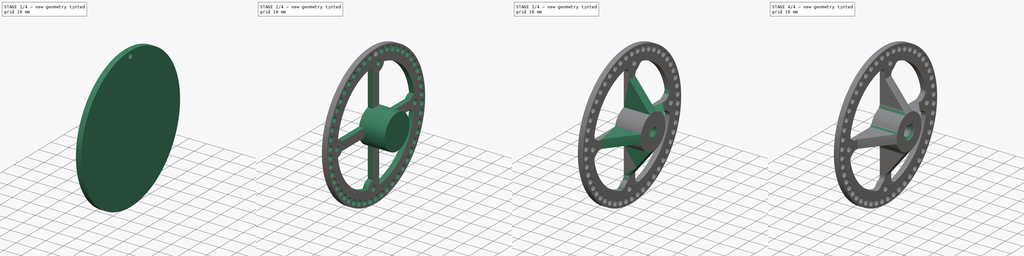
[diagram: build sequence overview — one tinted view per stage of 4, left to right]
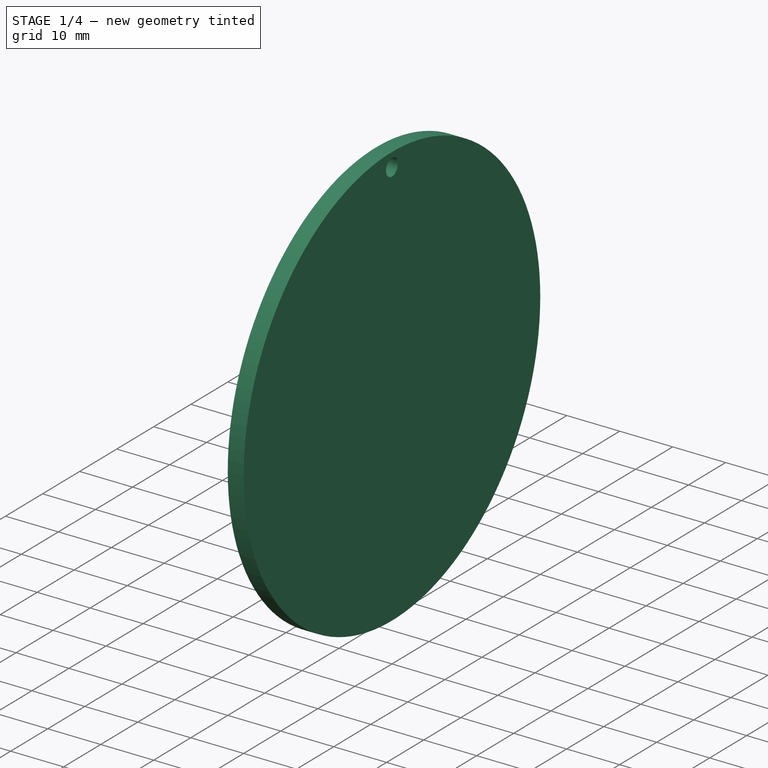
[diagram: stage 1 of 4 — iso view after this stage's code; geometry added in this stage tinted green]
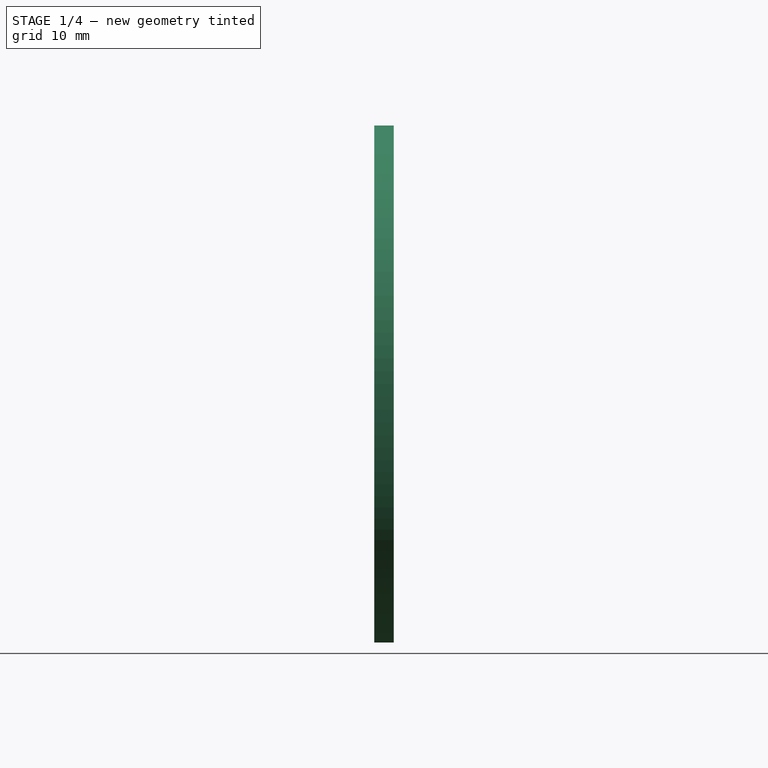
[diagram: stage 1 of 4 — front view after this stage's code; geometry added in this stage tinted green]
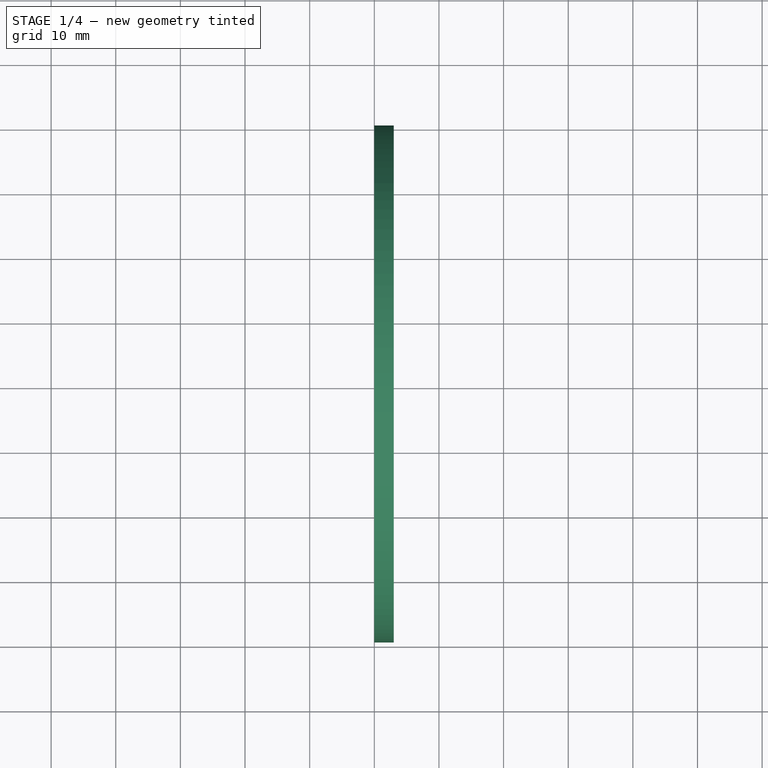
[diagram: stage 1 of 4 — top view after this stage's code; geometry added in this stage tinted green]
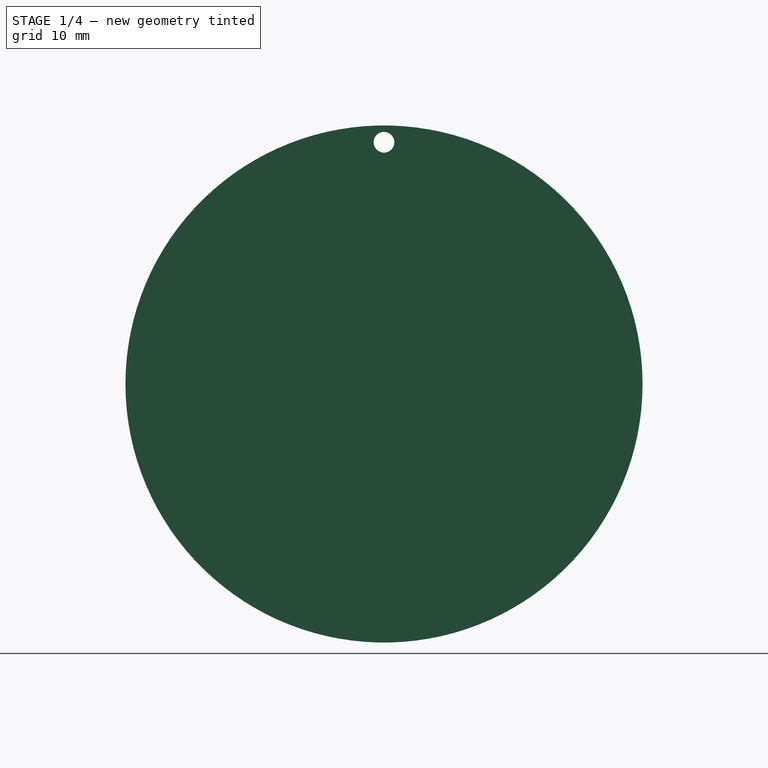
[diagram: stage 1 of 4 — right view after this stage's code; geometry added in this stage tinted green]
FCSTD DOCUMENT  (FreeCAD 1.0R39109 (Git))
Label: barrelMount
License: All rights reserved
LicenseURL: https://en.wikipedia.org/wiki/All_rights_reserved
objects: Sketcher::SketchObject×5, PartDesign::Pocket×3, PartDesign::Pad×2, PartDesign::Fillet×2, PartDesign::Chamfer×2, PartDesign::PolarPattern×1, PartDesign::Body×1
note: 40 computed .brp shape members not serialized (recipe doc carries the construction recipe); baked Part::Feature solids carry a one-line shape summary decoded from their .brp

FEATURE [Sketcher::SketchObject] Sketch
  ArcFitTolerance = 1e-06
  AttachmentSupport = -> [YZ_Plane]
  FullyConstrained = false
  MakeInternals = false
  MapMode = 5
  Placement = pos=(0,0,0) rot=(0.57735,0.57735,0.57735;2.0944rad)
  sketch-geometry (2):
    g0: Circle CenterX=0 CenterY=0 CenterZ=0 NormalX=0 NormalY=0 NormalZ=1 AngleXU=0 Radius=40
    g1: GeomPoint [constr] X=0 Y=0 Z=0
  constraints (1):
    c: Diameter(g0) = 80
FEATURE [PartDesign::Pad] Pad
  Direction = (1,0,0)
  Length = 3
  Length2 = 10
  Placement = pos=(0,0,0) rot=(1,1,1;2.0944rad)
  Profile = -> Sketch
  ReferenceAxis = -> Sketch [N_Axis]
  Refine = true
  Suppressed = false
  Type = 0
FEATURE [Sketcher::SketchObject] Sketch001
  ArcFitTolerance = 1e-06
  AttachmentSupport = -> [Pad]
  ExternalGeometry = -> [Pad]
  FullyConstrained = true
  MakeInternals = false
  MapMode = 5
  Placement = pos=(3,0,0) rot=(0.57735,0.57735,0.57735;2.0944rad)
  sketch-geometry (1):
    g0: Circle CenterX=0 CenterY=37.4 CenterZ=0 NormalX=0 NormalY=0 NormalZ=1 AngleXU=0 Radius=1.6
  constraints (3):
    c: PointOnObject(g0,g-2)
    c: Diameter(g0) = 3.2
    c: Distance(g0,g-3) = 1
FEATURE [PartDesign::Pocket] Pocket
  BaseFeature = -> Pad
  Direction = (-1,0,0)
  Length = 5
  Length2 = 5
  Placement = pos=(0,0,0) rot=(1,1,1;2.0944rad)
  Profile = -> Sketch001
  ReferenceAxis = -> Sketch001 [N_Axis]
  Refine = true
  Suppressed = false
  Type = 1
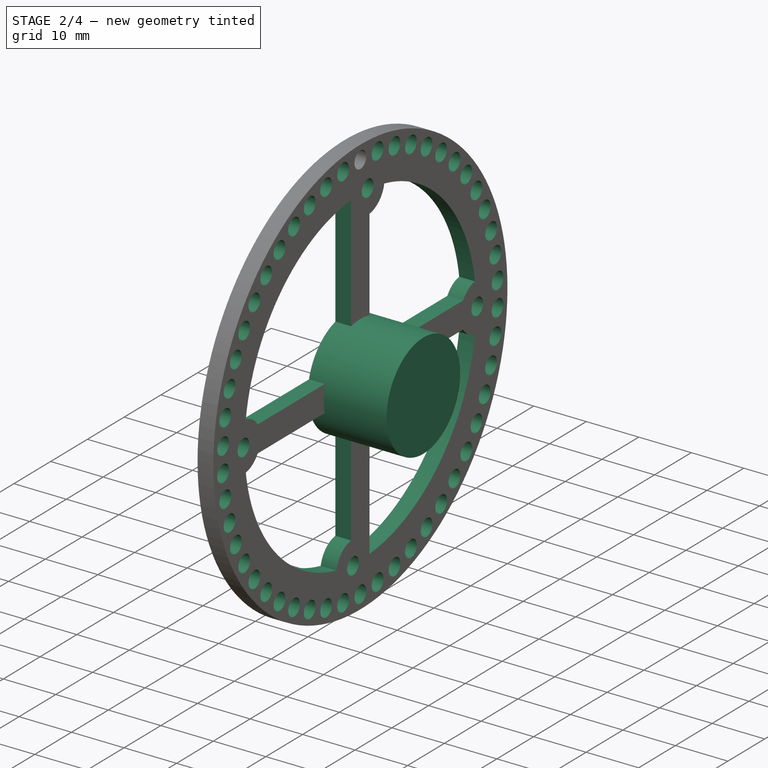
[diagram: stage 2 of 4 — iso view after this stage's code; geometry added in this stage tinted green]
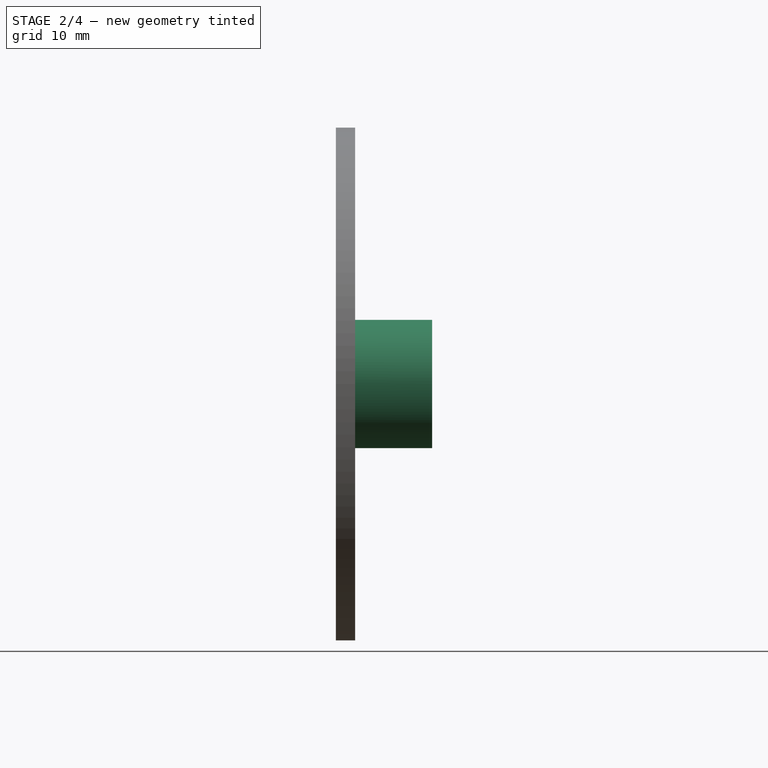
[diagram: stage 2 of 4 — front view after this stage's code; geometry added in this stage tinted green]
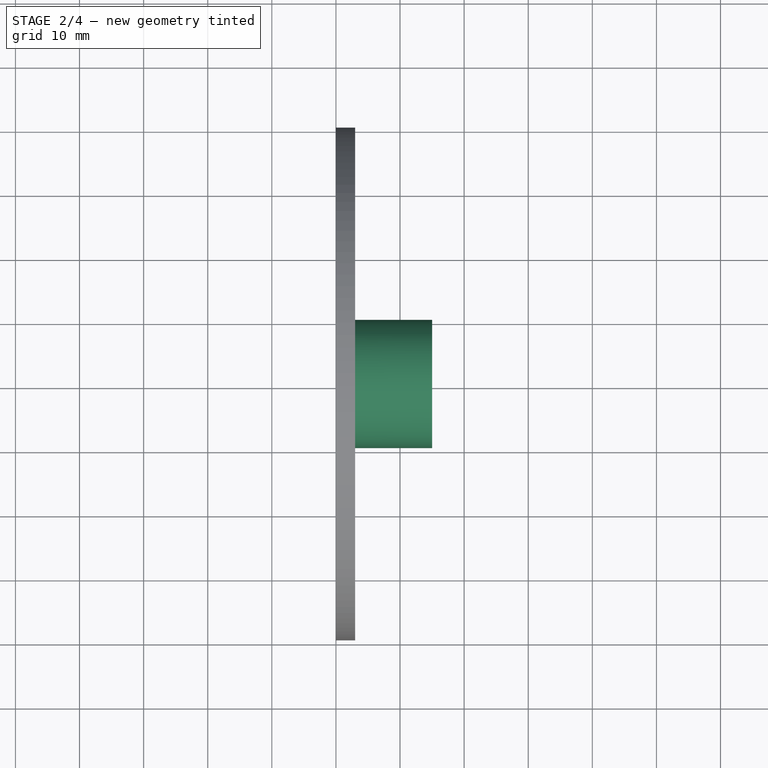
[diagram: stage 2 of 4 — top view after this stage's code; geometry added in this stage tinted green]
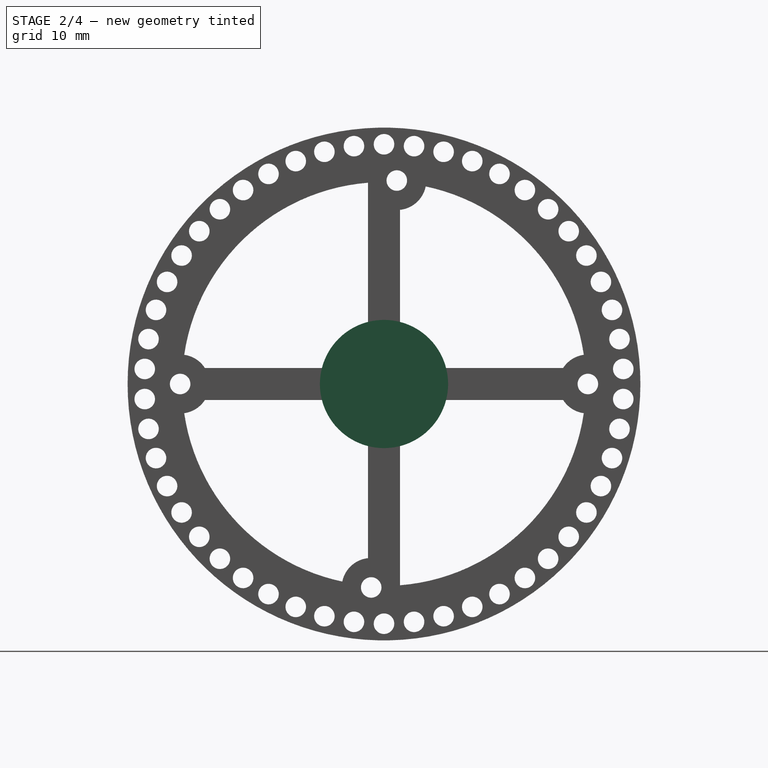
[diagram: stage 2 of 4 — right view after this stage's code; geometry added in this stage tinted green]
FEATURE [PartDesign::PolarPattern] PolarPattern
  Angle = 360
  Axis = -> Sketch001 [N_Axis]
  BaseFeature = -> Pocket
  Mode = 0
  Occurrences = 50
  Offset = 120
  Originals = -> [Pocket]
  Placement = pos=(0,0,0) rot=(1,1,1;2.0944rad)
  Refine = true
  Suppressed = false
  TransformMode = 0
FEATURE [Sketcher::SketchObject] Sketch002
  ArcFitTolerance = 1e-06
  AttachmentSupport = -> [PolarPattern]
  ExternalGeometry = -> [PolarPattern]
  FullyConstrained = true
  MakeInternals = false
  MapMode = 5
  Placement = pos=(3,0,0) rot=(0.57735,0.57735,0.57735;2.0944rad)
  sketch-geometry (27):
    g0: Circle [constr] CenterX=0 CenterY=0 CenterZ=0 NormalX=0 NormalY=0 NormalZ=1 AngleXU=0 Radius=31.5
    g1: Circle CenterX=1.99704 CenterY=31.7421 CenterZ=0 NormalX=0 NormalY=0 NormalZ=1 AngleXU=0 Radius=1.6
    g2: Circle CenterX=31.8049 CenterY=1.18e-14 CenterZ=0 NormalX=0 NormalY=0 NormalZ=1 AngleXU=0 Radius=1.6
    g3: Circle CenterX=-1.99704 CenterY=-31.7421 CenterZ=0 NormalX=0 NormalY=0 NormalZ=1 AngleXU=0 Radius=1.6
    g4: Circle CenterX=-31.8049 CenterY=-8.4e-15 CenterZ=0 NormalX=0 NormalY=0 NormalZ=1 AngleXU=0 Radius=1.6
    g5: ArcOfCircle CenterX=1.99704 CenterY=31.7421 CenterZ=0 NormalX=0 NormalY=0 NormalZ=1 AngleXU=0 Radius=4.6 StartAngle=4.82195 EndAngle=6.08164
    g6: LineSegment StartX=-2.5 StartY=31.4006 StartZ=0 EndX=-2.5 EndY=2.5 EndZ=0
    g7: LineSegment StartX=2.5 StartY=2.5 StartZ=0 EndX=2.5 EndY=27.1697 EndZ=0
    g8: LineSegment StartX=2.5 StartY=-2.5 StartZ=0 EndX=2.5 EndY=-31.4006 EndZ=0
    g9: LineSegment StartX=-2.5 StartY=-27.1697 StartZ=0 EndX=-2.5 EndY=-2.5 EndZ=0
    g10: ArcOfCircle CenterX=0 CenterY=0 CenterZ=0 NormalX=0 NormalY=0 NormalZ=1 AngleXU=0 Radius=31.5 StartAngle=0.145138 EndAngle=1.36283
    g11: ArcOfCircle CenterX=0 CenterY=0 CenterZ=0 NormalX=0 NormalY=0 NormalZ=1 AngleXU=0 Radius=31.5 StartAngle=4.79184 EndAngle=6.13805
    g12: ArcOfCircle CenterX=0 CenterY=0 CenterZ=0 NormalX=0 NormalY=0 NormalZ=1 AngleXU=0 Radius=31.5 StartAngle=1.65024 EndAngle=2.99645
    g13: ArcOfCircle CenterX=0 CenterY=0 CenterZ=0 NormalX=0 NormalY=0 NormalZ=1 AngleXU=0 Radius=31.5 StartAngle=3.28673 EndAngle=4.50442
    g14: ArcOfCircle CenterX=31.8049 CenterY=1.18e-14 CenterZ=0 NormalX=0 NormalY=0 NormalZ=1 AngleXU=0 Radius=4.6 StartAngle=3.71617 EndAngle=4.57367
    g15: Circle [constr] CenterX=-1.99704 CenterY=-31.7421 CenterZ=0 NormalX=0 NormalY=0 NormalZ=1 AngleXU=0 Radius=4.6
    g16: Circle [constr] CenterX=31.8049 CenterY=1.18e-14 CenterZ=0 NormalX=0 NormalY=0 NormalZ=1 AngleXU=0 Radius=4.6
    g17: Circle [constr] CenterX=1.99704 CenterY=31.7421 CenterZ=0 NormalX=0 NormalY=0 NormalZ=1 AngleXU=0 Radius=4.6
    g18: Circle [constr] CenterX=-31.8049 CenterY=-8.4e-15 CenterZ=0 NormalX=0 NormalY=0 NormalZ=1 AngleXU=0 Radius=4.6
    g19: ArcOfCircle CenterX=-1.99704 CenterY=-31.7421 CenterZ=0 NormalX=0 NormalY=0 NormalZ=1 AngleXU=0 Radius=4.6 StartAngle=1.68035 EndAngle=2.94004
    g20: ArcOfCircle CenterX=-31.8049 CenterY=-8.4e-15 CenterZ=0 NormalX=0 NormalY=0 NormalZ=1 AngleXU=0 Radius=4.6 StartAngle=0.574575 EndAngle=1.43208
    g21: ArcOfCircle CenterX=-31.8049 CenterY=-8.4e-15 CenterZ=0 NormalX=0 NormalY=0 NormalZ=1 AngleXU=0 Radius=4.6 StartAngle=4.85111 EndAngle=5.70861
    g22: LineSegment StartX=-2.5 StartY=2.5 StartZ=0 EndX=-27.9435 EndY=2.5 EndZ=0
    g23: LineSegment StartX=-2.5 StartY=-2.5 StartZ=0 EndX=-27.9435 EndY=-2.5 EndZ=0
    g24: LineSegment StartX=2.5 StartY=-2.5 StartZ=0 EndX=27.9435 EndY=-2.5 EndZ=0
    g25: LineSegment StartX=2.5 StartY=2.5 StartZ=0 EndX=27.9435 EndY=2.5 EndZ=0
    g26: ArcOfCircle CenterX=31.8049 CenterY=1.18e-14 CenterZ=0 NormalX=0 NormalY=0 NormalZ=1 AngleXU=0 Radius=4.6 StartAngle=1.70951 EndAngle=2.56702
  constraints (76):
    c: Coincident(g0,g-1)
    c: Coincident(g5,g1)
    c: Distance(g2,g-6) = 6
    c: Distance(g-5,g2) = 6
    c: Distance(g1,g-3) = 6
    c: Distance(g1,g-4) = 6
    c: Distance(g-7,g4) = 6
    c: Distance(g-8,g4) = 6
    c: Diameter(g1) = 3.2
    c: Equal(g1,g2)
    c: Equal(g2,g3)
    c: Equal(g3,g4)
    c: Vertical(g6)
    c: Vertical(g7)
    c: Vertical(g8)
    c: Vertical(g9)
    c: Coincident(g7,g5)
    c: Coincident(g10,g0)
    c: Coincident(g10,g5)
    c: Coincident(g11,g0)
    c: Coincident(g11,g8)
    c: Coincident(g12,g0)
    c: Coincident(g12,g6)
    c: PointOnObject(g5,g0)
    c: PointOnObject(g13,g0)
    c: Distance(g7,g6) = 5
    c: Distance(g6,g-2) = 2.5
    c: Distance(g7,g-1) = 2.5
    c: PointOnObject(g6,g0)
    c: PointOnObject(g8,g0)
    c: Coincident(g13,g0)
    c: Distance(g6,g-1) = 2.5
    c: Distance(g9,g8) = 5
    c: Distance(g9,g-2) = 2.5
    c: Coincident(g14,g2)
    c: Coincident(g15,g3)
    c: Coincident(g16,g2)
    c: Coincident(g17,g1)
    c: Coincident(g18,g4)
    c: Distance(g18,g4) = 3
    c: Distance(g2,g16) = 3
    c: Coincident(g11,g14)
    c: PointOnObject(g11,g16)
    c: Coincident(g19,g3)
    c: Coincident(g19,g9)
    c: Coincident(g19,g13)
    c: Coincident(g20,g4)
    c: PointOnObject(g20,g18)
    c: Coincident(g21,g4)
    c: PointOnObject(g21,g18)
    c: Coincident(g13,g21)
    c: Coincident(g20,g12)
    c: Coincident(g22,g6)
    c: Horizontal(g22)
    c: Coincident(g24,g8)
    c: Horizontal(g24)
    c: Coincident(g25,g7)
    c: Horizontal(g25)
    c: Coincident(g26,g2)
    c: PointOnObject(g26,g16)
    c: Coincident(g26,g10)
    c: Coincident(g25,g26)
    c: Coincident(g14,g24)
    c: Coincident(g9,g23)
    c: Horizontal(g23)
    c: Coincident(g23,g21)
    c: Coincident(g22,g20)
    c: PointOnObject(g13,g15)
    c: Distance(g3,g15) = 3
    c: Distance(g22,g23) = 5
    c: Distance(g24,g25) = 5
    c: Distance(g10,g-9) = 8.5
    c: Distance(g3,g-11) = 6
    c: Distance(g-10,g3) = 6
    c: Distance(g1,g17) = 3
    c: PointOnObject(g5,g17)
FEATURE [PartDesign::Pocket] Pocket001
  BaseFeature = -> PolarPattern
  Direction = (-1,0,0)
  Length = 5
  Length2 = 5
  Placement = pos=(0,0,0) rot=(1,1,1;2.0944rad)
  Profile = -> Sketch002
  ReferenceAxis = -> Sketch002 [N_Axis]
  Refine = true
  Suppressed = false
  Type = 1
FEATURE [Sketcher::SketchObject] Sketch003
  ArcFitTolerance = 1e-06
  AttachmentSupport = -> [YZ_Plane]
  FullyConstrained = true
  MakeInternals = false
  MapMode = 5
  Placement = pos=(0,0,0) rot=(0.57735,0.57735,0.57735;2.0944rad)
  sketch-geometry (1):
    g0: Circle CenterX=0 CenterY=0 CenterZ=0 NormalX=0 NormalY=0 NormalZ=1 AngleXU=0 Radius=10
  constraints (2):
    c: Coincident(g0,g-1)
    c: Diameter(g0) = 20
FEATURE [PartDesign::Pad] Pad001
  BaseFeature = -> Pocket001
  Direction = (1,0,0)
  Length = 15
  Length2 = 10
  Placement = pos=(0,0,0) rot=(1,1,1;2.0944rad)
  Profile = -> Sketch003
  ReferenceAxis = -> Sketch003 [N_Axis]
  Refine = true
  Suppressed = false
  Type = 0
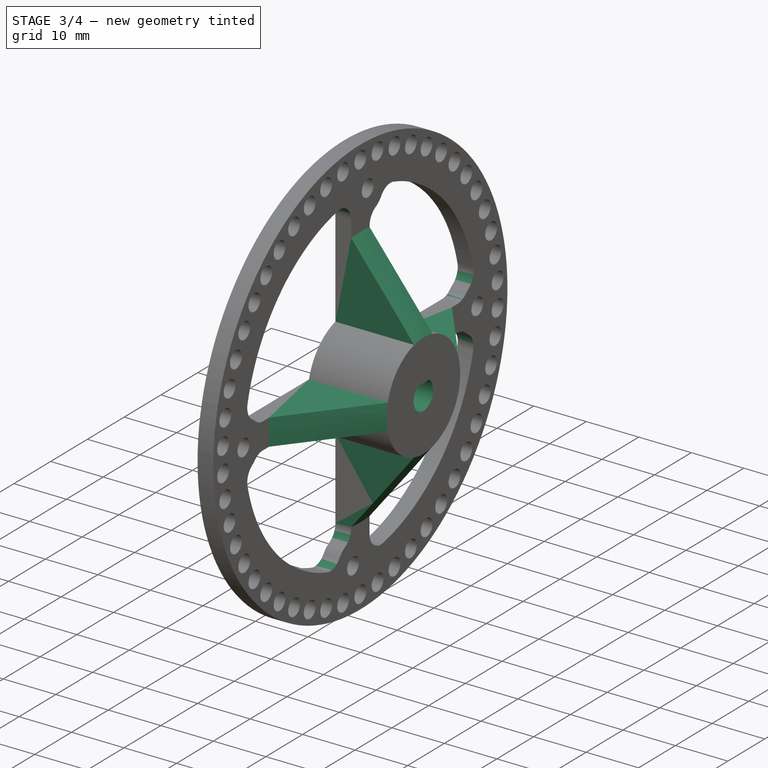
[diagram: stage 3 of 4 — iso view after this stage's code; geometry added in this stage tinted green]
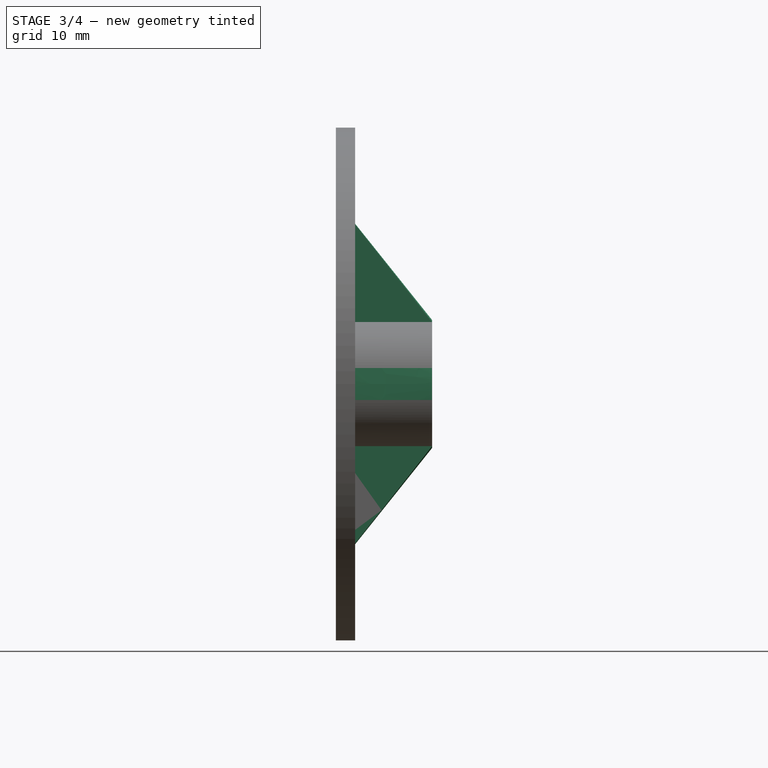
[diagram: stage 3 of 4 — front view after this stage's code; geometry added in this stage tinted green]
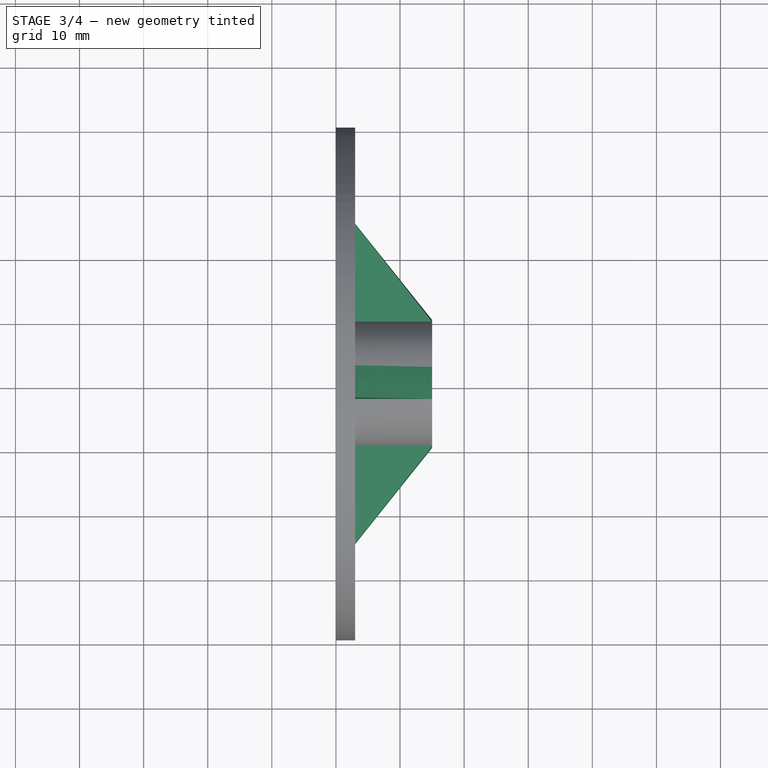
[diagram: stage 3 of 4 — top view after this stage's code; geometry added in this stage tinted green]
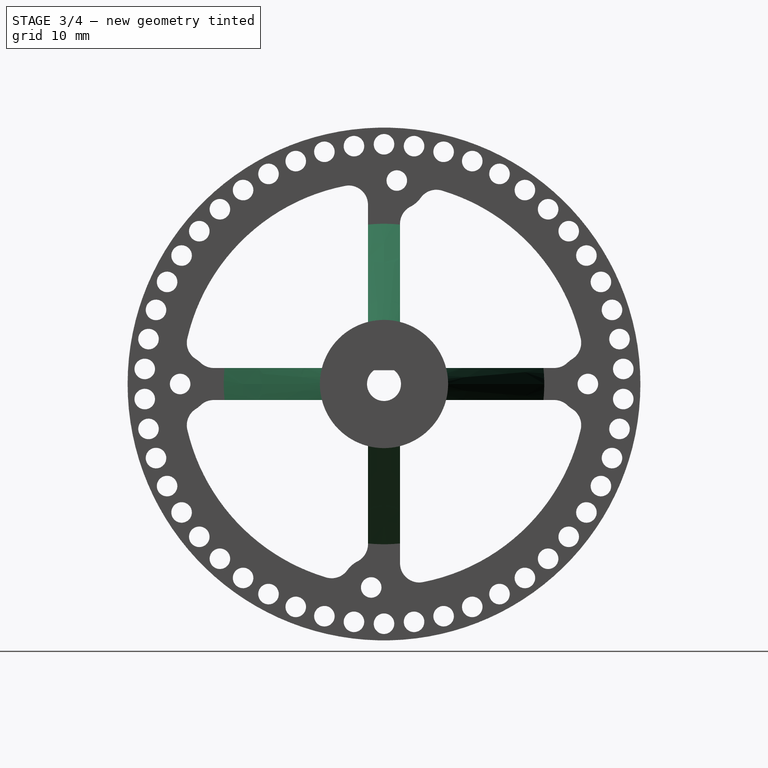
[diagram: stage 3 of 4 — right view after this stage's code; geometry added in this stage tinted green]
FEATURE [Sketcher::SketchObject] Sketch004
  ArcFitTolerance = 1e-06
  AttachmentSupport = -> [Pad001]
  FullyConstrained = true
  MakeInternals = false
  MapMode = 5
  Placement = pos=(15,0,0) rot=(0.57735,0.57735,0.57735;2.0944rad)
  sketch-geometry (5):
    g0: LineSegment [constr] StartX=-1.5 StartY=2 StartZ=0 EndX=1.5 EndY=2 EndZ=0
    g1: ArcOfCircle [constr] CenterX=0 CenterY=0 CenterZ=0 NormalX=0 NormalY=0 NormalZ=1 AngleXU=0 Radius=2.5 StartAngle=2.2143 EndAngle=7.21048
    g2: Circle [constr] CenterX=0 CenterY=0 CenterZ=0 NormalX=0 NormalY=0 NormalZ=1 AngleXU=0 Radius=2.5
    g3: ArcOfCircle CenterX=0 CenterY=0 CenterZ=0 NormalX=0 NormalY=0 NormalZ=1 AngleXU=0 Radius=2.65 StartAngle=2.19518 EndAngle=7.22959
    g4: LineSegment StartX=-1.54919 StartY=2.15 StartZ=0 EndX=1.54919 EndY=2.15 EndZ=0
  constraints (14):
    c: Horizontal(g0)
    c: Coincident(g1,g-1)
    c: Coincident(g1,g0)
    c: Coincident(g1,g0)
    c: Coincident(g2,g1)
    c: PointOnObject(g0,g2)
    c: Diameter(g2) = 5
    c: Distance(g2,g0) = -0.5
    c: Coincident(g3,g1)
    c: Coincident(g4,g3)
    c: Coincident(g4,g3)
    c: Horizontal(g4)
    c: Distance(g1,g3) = 0.15
    c: Distance(g0,g4) = 0.15
FEATURE [PartDesign::Pocket] Pocket002
  BaseFeature = -> Pad001
  Direction = (-1,0,0)
  Length = 5
  Length2 = 5
  Placement = pos=(0,0,0) rot=(1,1,1;2.0944rad)
  Profile = -> Sketch004
  ReferenceAxis = -> Sketch004 [N_Axis]
  Refine = true
  Suppressed = false
  Type = 1
FEATURE [PartDesign::Fillet] Fillet
  Base = -> Pocket002 [Edge186,Edge208,Edge184,Edge173,Edge198,Edge197,Edge226,Edge227,Edge224,Edge225,Edge210,Edge209,Edge196,Edge185]
  BaseFeature = -> Pocket002
  Placement = pos=(0,0,0) rot=(1,1,1;2.0944rad)
  Radius = 3
  Refine = true
  SupportTransform = false
  Suppressed = false
  UseAllEdges = false
FEATURE [PartDesign::Chamfer] Chamfer
  Angle = 45
  Base = -> Fillet [Edge104,Edge107,Edge110,Edge99,Edge101]
  BaseFeature = -> Fillet
  ChamferType = 1
  FlipDirection = false
  Placement = pos=(0,0,0) rot=(1,1,1;2.0944rad)
  Refine = true
  Size = 11.99
  Size2 = 15
  SupportTransform = false
  Suppressed = false
  UseAllEdges = false
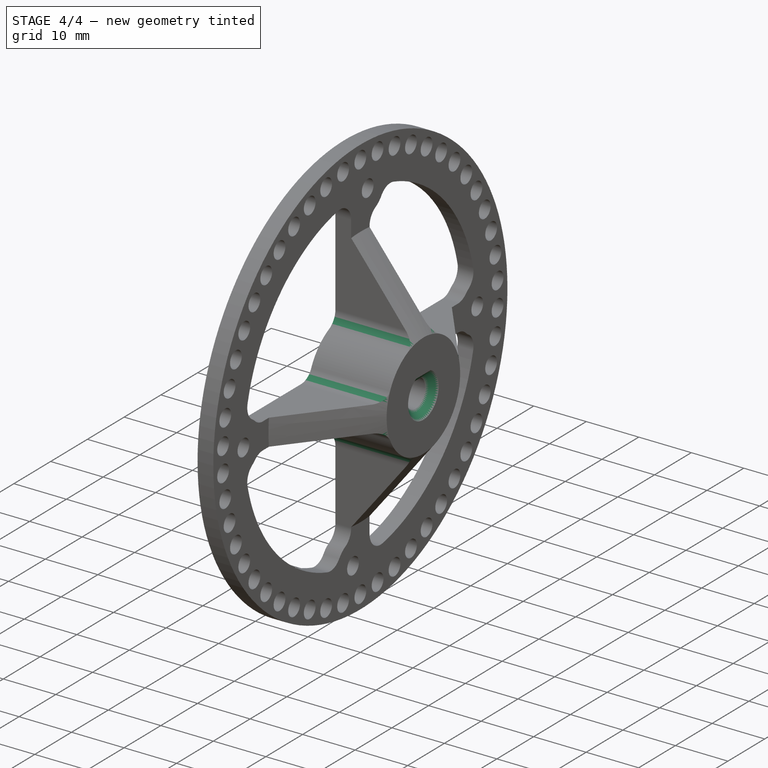
[diagram: stage 4 of 4 — iso view after this stage's code; geometry added in this stage tinted green]
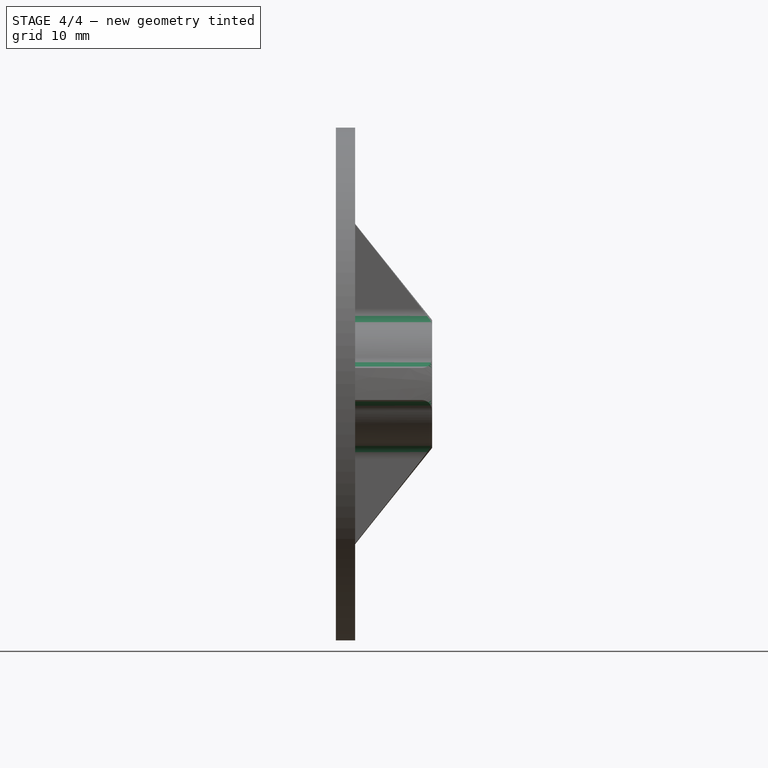
[diagram: stage 4 of 4 — front view after this stage's code; geometry added in this stage tinted green]
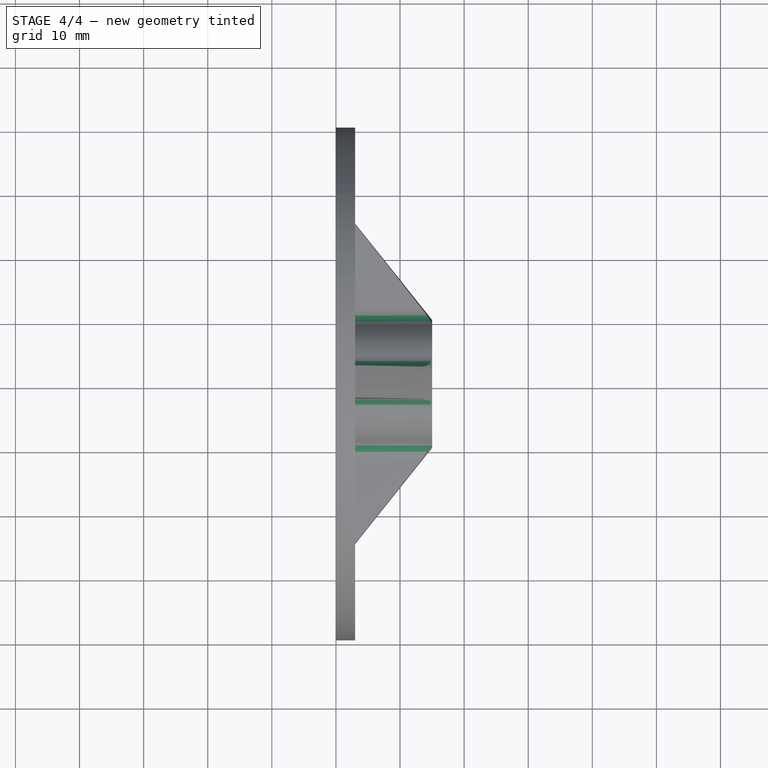
[diagram: stage 4 of 4 — top view after this stage's code; geometry added in this stage tinted green]
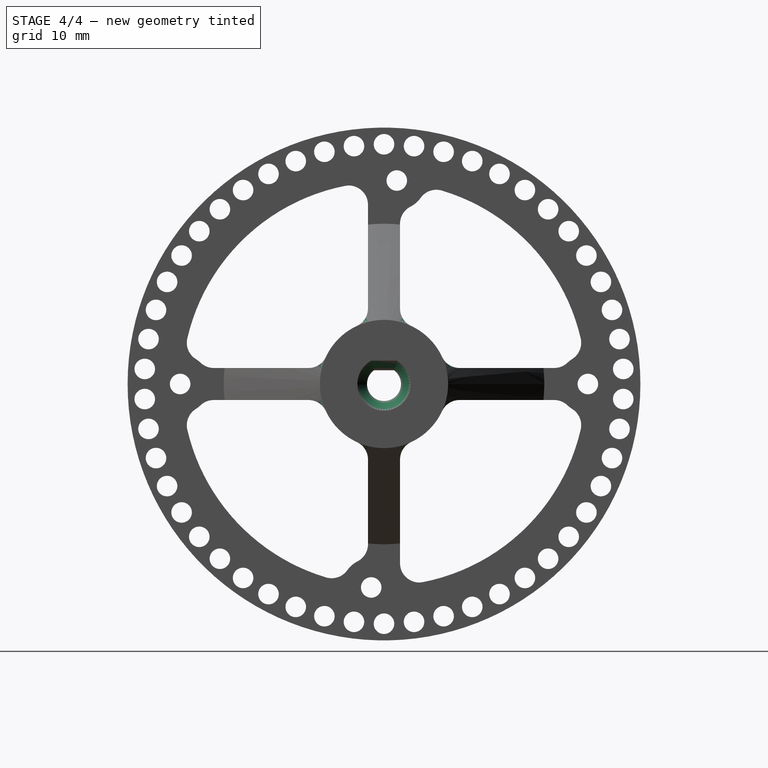
[diagram: stage 4 of 4 — right view after this stage's code; geometry added in this stage tinted green]
FEATURE [PartDesign::Fillet] Fillet001
  Base = -> Chamfer [Edge109,Edge108,Edge106,Edge105,Edge6,Edge4,Edge114,Edge112,Edge124,Edge125,Edge120,Edge118,Edge119,Edge121,Edge115,Edge113]
  BaseFeature = -> Chamfer
  Placement = pos=(0,0,0) rot=(1,1,1;2.0944rad)
  Radius = 3
  Refine = true
  SupportTransform = false
  Suppressed = false
  UseAllEdges = false
FEATURE [PartDesign::Chamfer] Chamfer001
  Angle = 45
  Base = -> Fillet001 [Edge328,Edge325]
  BaseFeature = -> Fillet001
  ChamferType = 0
  FlipDirection = false
  Placement = pos=(0,0,0) rot=(1,1,1;2.0944rad)
  Refine = true
  Size = 1.5
  Size2 = 1
  SupportTransform = false
  Suppressed = false
  UseAllEdges = false
FEATURE [PartDesign::Body] Body
  AllowCompound = false
  Group = -> [Sketch,Pad,Sketch001,Pocket,PolarPattern,Sketch002,Pocket001,Sketch003,Pad001,Sketch004,Pocket002,Fillet,Chamfer,Fillet001,Chamfer001]
  Origin = -> Origin
  Tip = -> Chamfer001
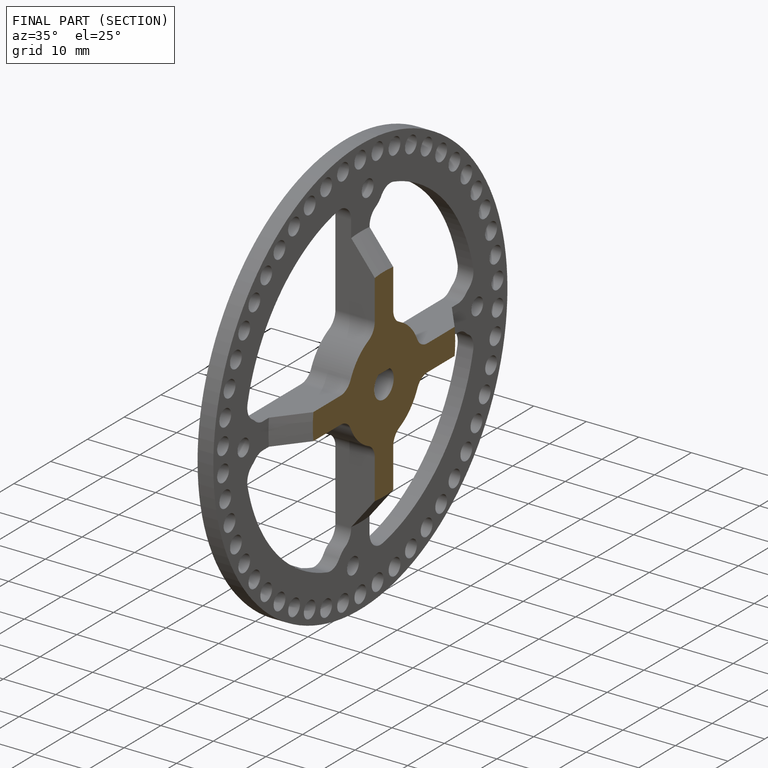
[diagram: finished part — half-section view (interior)]
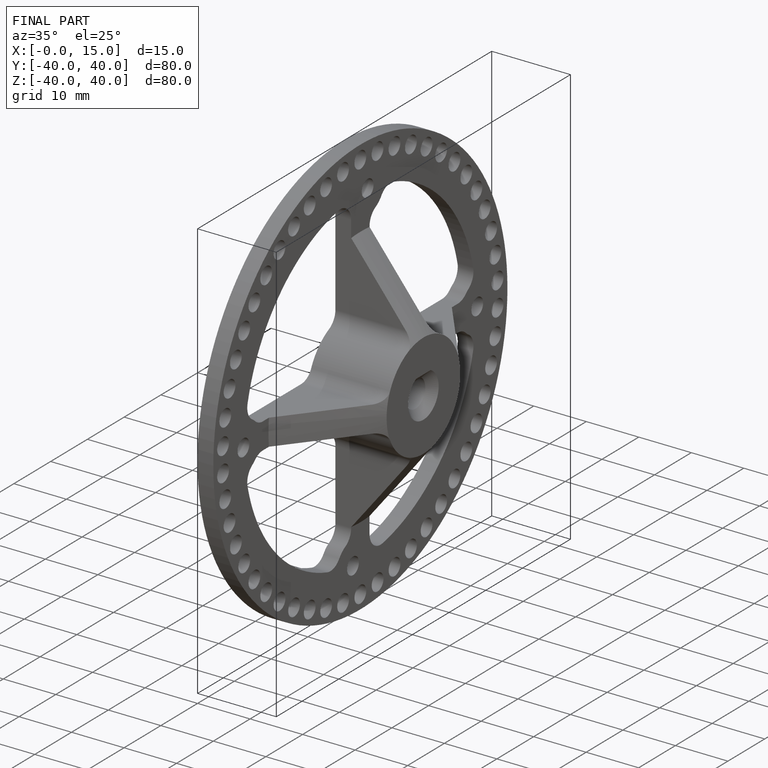
[diagram: finished part — iso view with bounding-box wireframe]
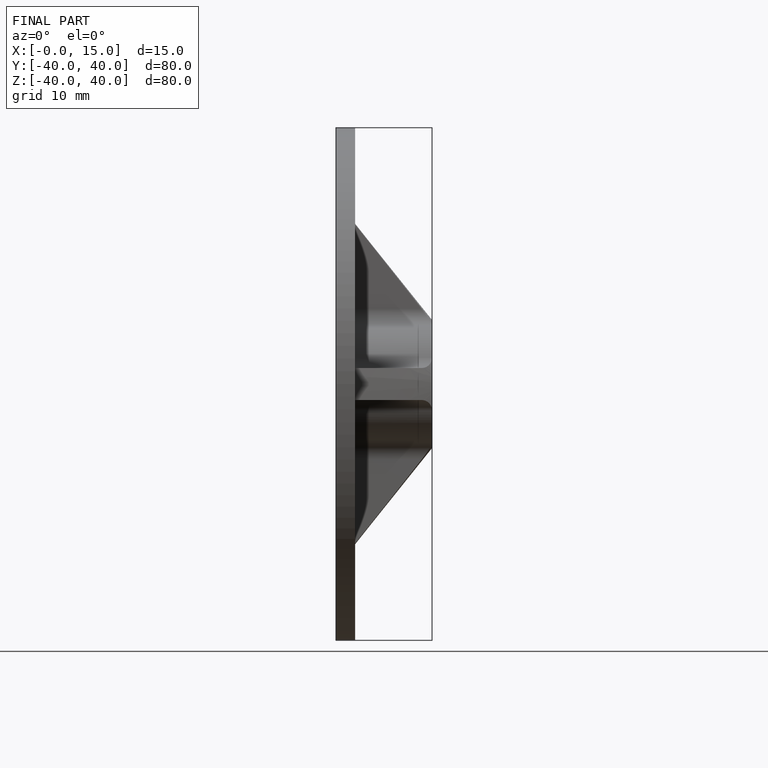
[diagram: finished part — front view with bounding-box wireframe]
